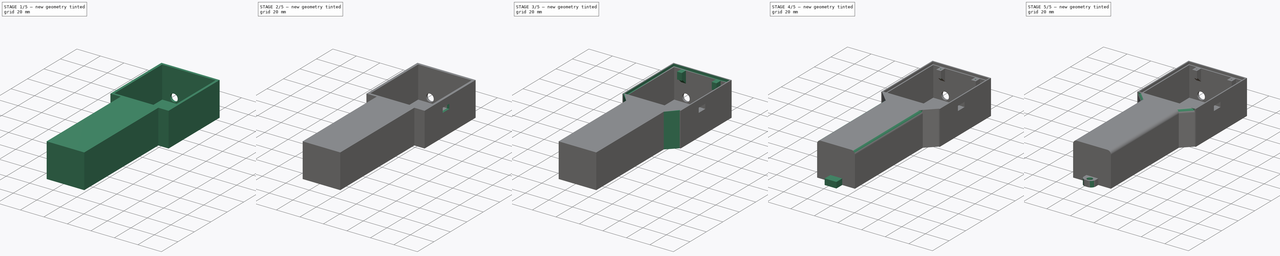
[diagram: build sequence overview — one tinted view per stage of 5, left to right]
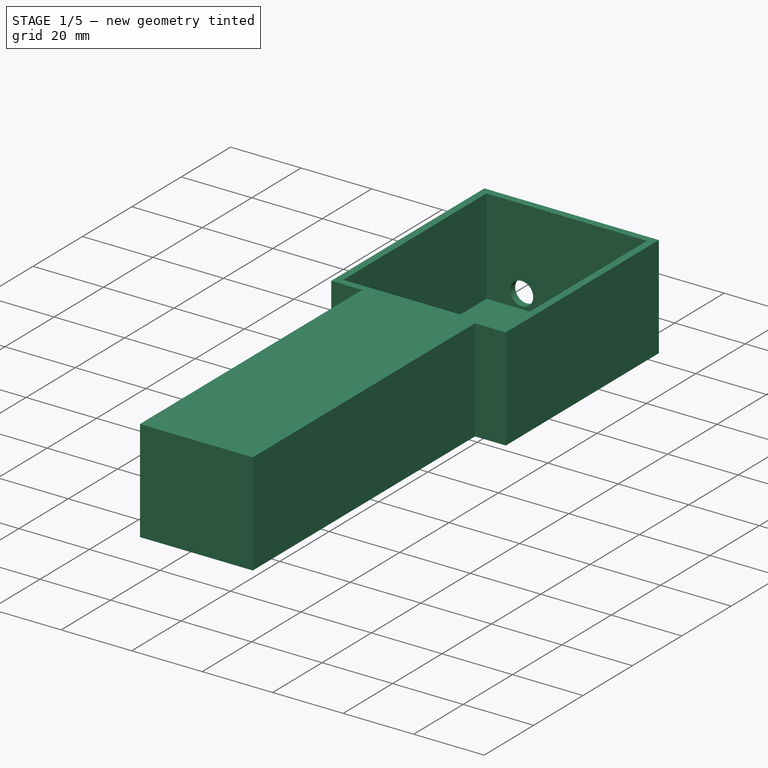
[diagram: stage 1 of 5 — iso view after this stage's code; geometry added in this stage tinted green]
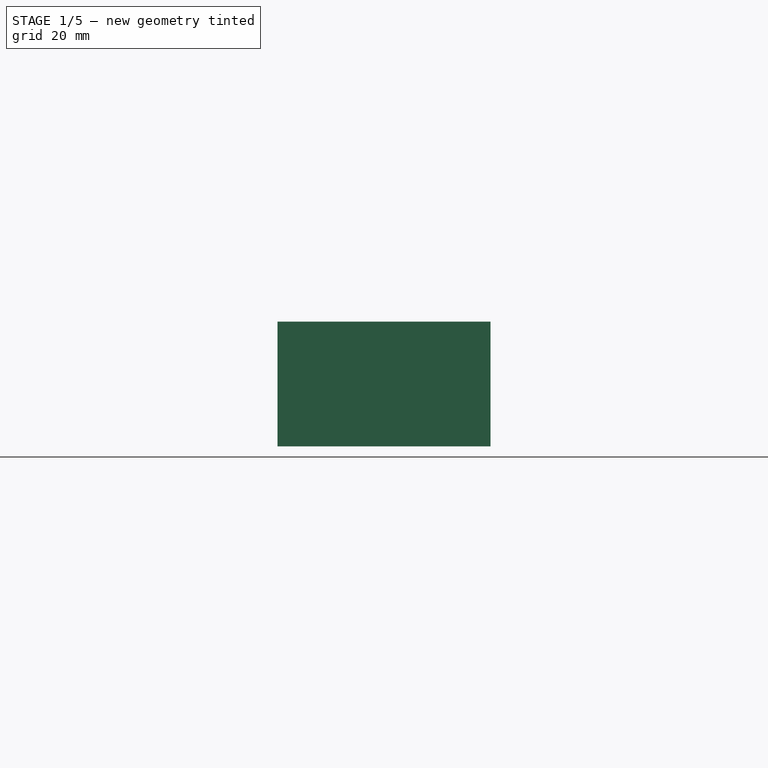
[diagram: stage 1 of 5 — front view after this stage's code; geometry added in this stage tinted green]
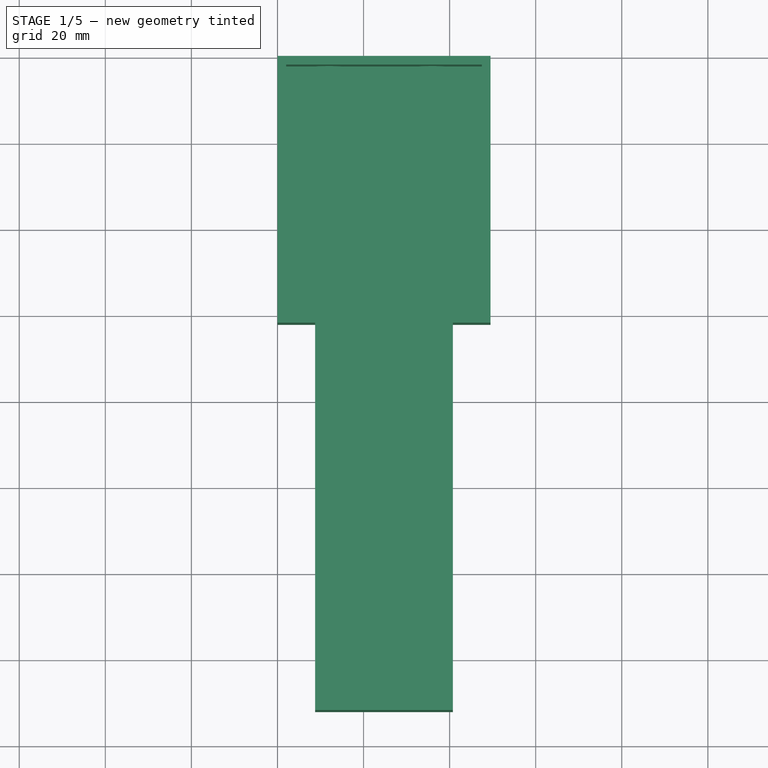
[diagram: stage 1 of 5 — top view after this stage's code; geometry added in this stage tinted green]
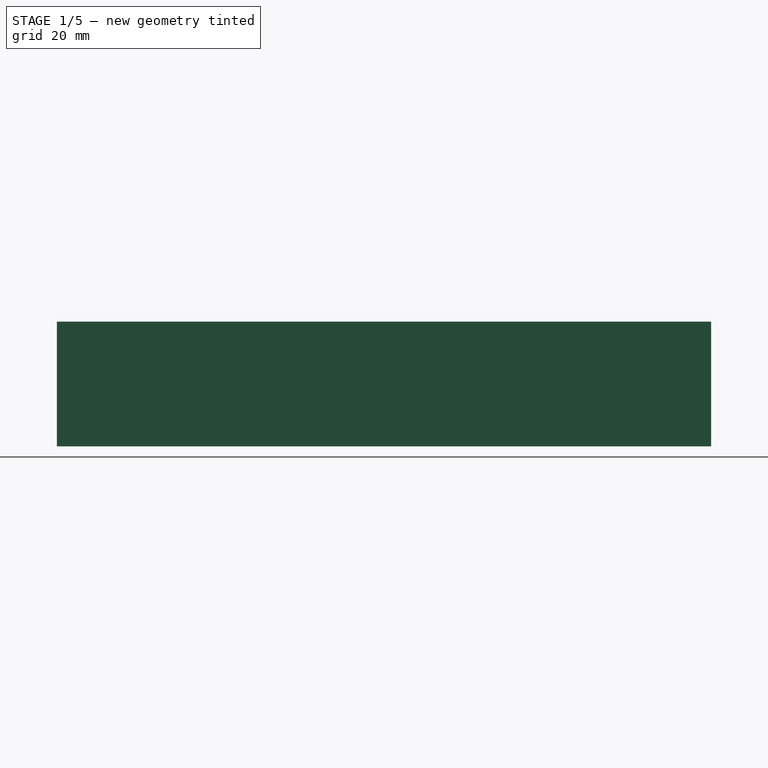
[diagram: stage 1 of 5 — right view after this stage's code; geometry added in this stage tinted green]
FCSTD DOCUMENT  (FreeCAD 0.18R)
Label: power_meter_case
License: All rights reserved
LicenseURL: http://en.wikipedia.org/wiki/All_rights_reserved
objects: Sketcher::SketchObject×18, PartDesign::Pocket×13, PartDesign::Pad×5, PartDesign::Fillet×4, PartDesign::Chamfer×2, PartDesign::Body×1
note: 61 computed .brp shape members not serialized (recipe doc carries the construction recipe); baked Part::Feature solids carry a one-line shape summary decoded from their .brp

FEATURE [Sketcher::SketchObject] Sketch
  MapMode = 5
  Support = -> [XY_Plane]
  sketch-geometry (8):
    g0: LineSegment StartX=0 StartY=0 StartZ=0 EndX=49.5 EndY=0 EndZ=0
    g1: LineSegment StartX=49.5 StartY=0 StartZ=0 EndX=49.5 EndY=-62 EndZ=0
    g2: LineSegment StartX=49.5 StartY=-62 StartZ=0 EndX=40.75 EndY=-62 EndZ=0
    g3: LineSegment StartX=40.75 StartY=-62 StartZ=0 EndX=40.75 EndY=-152 EndZ=0
    g4: LineSegment StartX=40.75 StartY=-152 StartZ=0 EndX=8.75 EndY=-152 EndZ=0
    g5: LineSegment StartX=8.75 StartY=-152 StartZ=0 EndX=8.75 EndY=-62 EndZ=0
    g6: LineSegment StartX=8.75 StartY=-62 StartZ=0 EndX=0 EndY=-62 EndZ=0
    g7: LineSegment StartX=0 StartY=-62 StartZ=0 EndX=0 EndY=0 EndZ=0
  constraints (23):
    c: Coincident(g-1,g0)
    c: PointOnObject(g0,g-1)
    c: Coincident(g0,g1)
    c: Vertical(g1)
    c: Coincident(g1,g2)
    c: Coincident(g2,g3)
    c: Vertical(g3)
    c: Coincident(g3,g4)
    c: Horizontal(g4)
    c: Coincident(g4,g5)
    c: Vertical(g5)
    c: Coincident(g5,g6)
    c: PointOnObject(g6,g-2)
    c: Coincident(g6,g7)
    c: Coincident(g7,g0)
    c: Distance(g0) = 49.5
    c: Equal(g1,g7)
    c: Distance(g1) = 62
    c: Distance(g4) = 32
    c: Equal(g3,g5)
    c: Distance(g5) = 90
    c: Equal(g2,g6)
    c: Parallel(g2,g4)
FEATURE [PartDesign::Pad] Pad
  Length = 29
  Length2 = 100
  Profile = -> Sketch
  Type = 0
FEATURE [Sketcher::SketchObject] Sketch001
  MapMode = 5
  Placement = pos=(0,0,29) rot=(0,0,1;0rad)
  Support = -> [Pad]
  sketch-geometry (6):
    g0: LineSegment StartX=2 StartY=-2 StartZ=0 EndX=47.5 EndY=-2 EndZ=0
    g1: LineSegment StartX=47.5 StartY=-2 StartZ=0 EndX=47.5 EndY=-60 EndZ=0
    g2: LineSegment StartX=47.5 StartY=-60 StartZ=0 EndX=38.75 EndY=-60 EndZ=0
    g3: LineSegment StartX=38.75 StartY=-60 StartZ=0 EndX=10.75 EndY=-60 EndZ=0
    g4: LineSegment StartX=10.75 StartY=-60 StartZ=0 EndX=2 EndY=-60 EndZ=0
    g5: LineSegment StartX=2 StartY=-60 StartZ=0 EndX=2 EndY=-2 EndZ=0
  constraints (18):
    c: Horizontal(g0)
    c: Coincident(g0,g1)
    c: Vertical(g1)
    c: Coincident(g1,g2)
    c: Coincident(g2,g3)
    c: Horizontal(g3)
    c: Coincident(g3,g4)
    c: Coincident(g4,g5)
    c: Coincident(g5,g0)
    c: Vertical(g5)
    c: Distance(g0) = 45.5
    c: Distance(g-1,g5) = 2
    c: DistanceY(g-1,g0) = -2
    c: Distance(g5) = 58
    c: Equal(g5,g1)
    c: Distance(g3) = 28
    c: Equal(g2,g4)
    c: Parallel(g2,g3)
FEATURE [PartDesign::Pocket] Pocket
  BaseFeature = -> Pad
  Length = 27
  Length2 = 100
  Profile = -> Sketch001
  Type = 0
FEATURE [Sketcher::SketchObject] Sketch002
  MapMode = 5
  Placement = pos=(0,0,0) rot=(1,0,0;3.14159rad)
  Support = -> [Pocket]
  sketch-geometry (4):
    g0: LineSegment StartX=10.75 StartY=147 StartZ=0 EndX=38.75 EndY=147 EndZ=0
    g1: LineSegment StartX=38.75 StartY=147 StartZ=0 EndX=38.75 EndY=87 EndZ=0
    g2: LineSegment StartX=38.75 StartY=87 StartZ=0 EndX=10.75 EndY=87 EndZ=0
    g3: LineSegment StartX=10.75 StartY=87 StartZ=0 EndX=10.75 EndY=147 EndZ=0
  constraints (12):
    c: Coincident(g0,g1)
    c: Coincident(g1,g2)
    c: Coincident(g2,g3)
    c: Coincident(g3,g0)
    c: Horizontal(g0)
    c: Horizontal(g2)
    c: Vertical(g1)
    c: Vertical(g3)
    c: Distance(g3) = 60
    c: Distance(g2) = 28
    c: DistanceY(g-1,g1) = 87
    c: DistanceX(g-2,g2) = 10.75
FEATURE [PartDesign::Pocket] Pocket001
  BaseFeature = -> Pocket
  Length = 27
  Length2 = 100
  Profile = -> Sketch002
  Type = 0
FEATURE [Sketcher::SketchObject] Sketch003
  MapMode = 5
  Placement = pos=(0,-60,0) rot=(0,0.707107,0.707107;3.14159rad)
  Support = -> [Pocket001]
  sketch-geometry (4):
    g0: LineSegment StartX=-38.75 StartY=27 StartZ=0 EndX=-10.75 EndY=27 EndZ=0
    g1: LineSegment StartX=-10.75 StartY=27 StartZ=0 EndX=-10.75 EndY=3 EndZ=0
    g2: LineSegment StartX=-10.75 StartY=3 StartZ=0 EndX=-38.75 EndY=3 EndZ=0
    g3: LineSegment StartX=-38.75 StartY=3 StartZ=0 EndX=-38.75 EndY=27 EndZ=0
  constraints (12):
    c: Coincident(g0,g1)
    c: Coincident(g1,g2)
    c: Coincident(g2,g3)
    c: Coincident(g3,g0)
    c: Horizontal(g0)
    c: Horizontal(g2)
    c: Vertical(g1)
    c: Vertical(g3)
    c: Distance(g0) = 28
    c: Distance(g1) = 24
    c: DistanceY(g-1,g2) = 3
    c: DistanceX(g-2,g0) = -10.75
FEATURE [PartDesign::Pocket] Pocket002
  BaseFeature = -> Pocket001
  Length = 27
  Length2 = 100
  Profile = -> Sketch003
  Type = 0
FEATURE [Sketcher::SketchObject] Sketch004
  MapMode = 5
  Placement = pos=(0,0,0) rot=(0,0.707107,0.707107;3.14159rad)
  sketch-geometry (2):
    g0: Circle CenterX=-36 CenterY=6 CenterZ=0 NormalX=0 NormalY=0 NormalZ=1 AngleXU=0 Radius=3.25
    g1: Circle CenterX=-12 CenterY=6 CenterZ=0 NormalX=0 NormalY=0 NormalZ=1 AngleXU=0 Radius=3.25
  constraints (6):
    c: Radius(g1) = 3.25
    c: Radius(g0) = 3.25
    c: DistanceX(g-2,g1) = -12
    c: Distance(g1,g0) = 24
    c: DistanceY(g-1,g1) = 6
    c: DistanceY(g-1,g0) = 6
FEATURE [PartDesign::Pocket] Pocket003
  BaseFeature = -> Pocket002
  Length = 2
  Length2 = 100
  Profile = -> Sketch004
  Type = 0
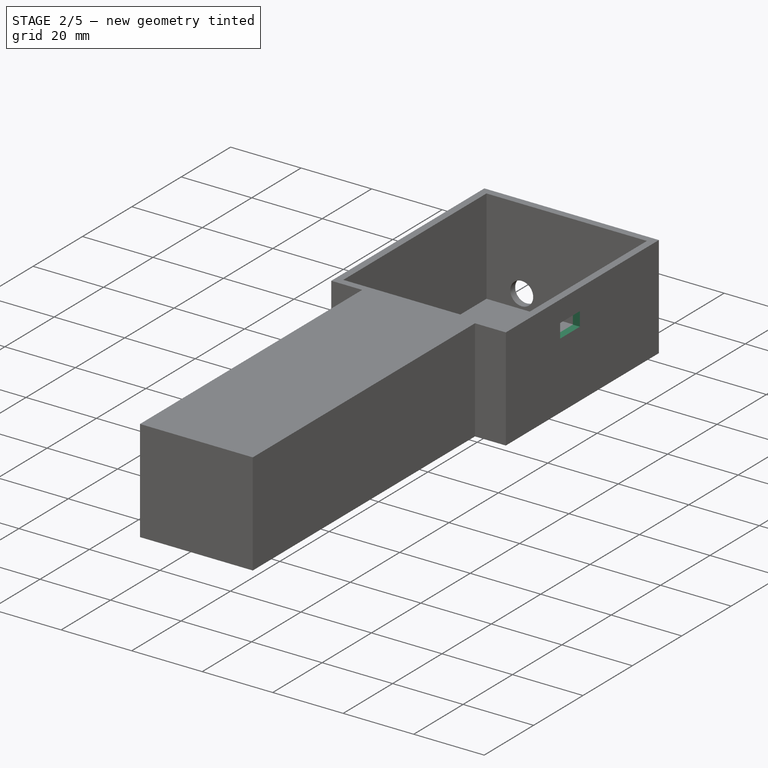
[diagram: stage 2 of 5 — iso view after this stage's code; geometry added in this stage tinted green]
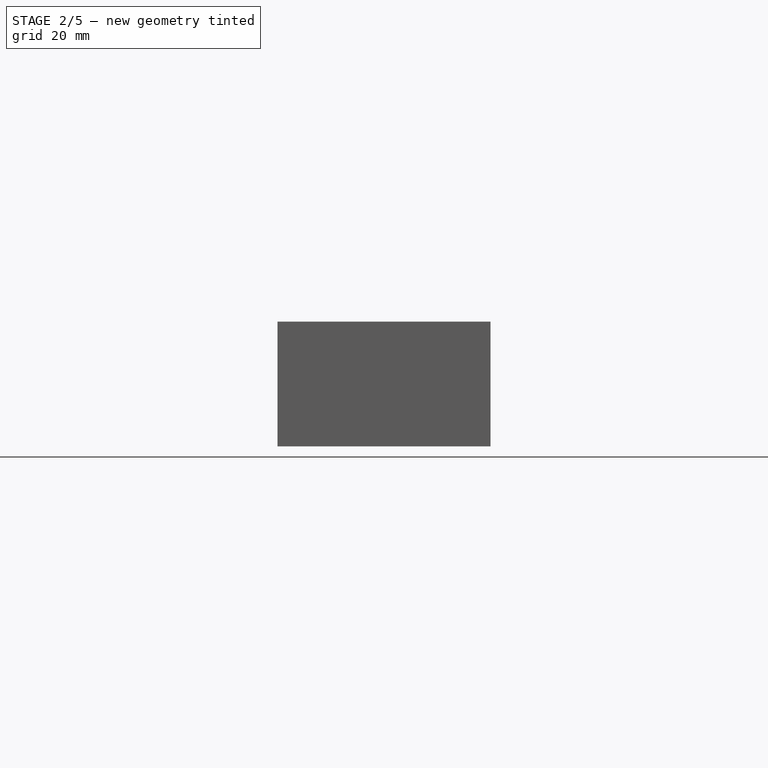
[diagram: stage 2 of 5 — front view after this stage's code; geometry added in this stage tinted green]
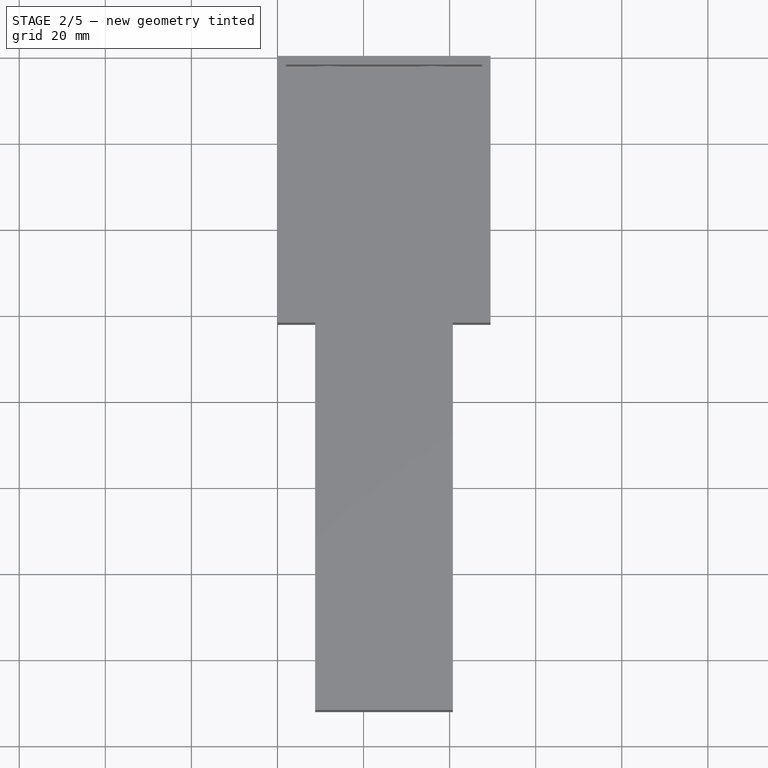
[diagram: stage 2 of 5 — top view after this stage's code; geometry added in this stage tinted green]
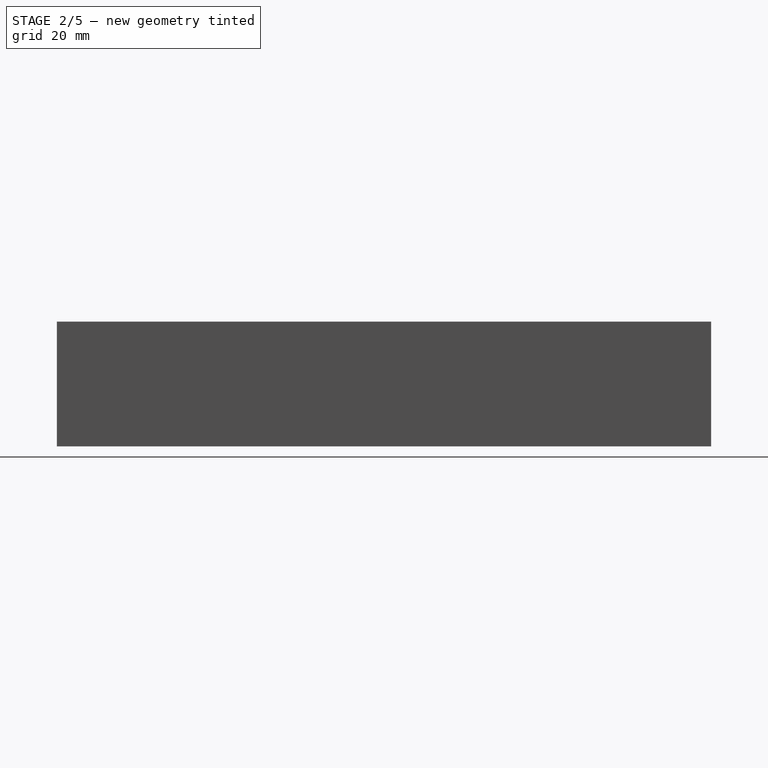
[diagram: stage 2 of 5 — right view after this stage's code; geometry added in this stage tinted green]
FEATURE [Sketcher::SketchObject] Sketch005
  MapMode = 5
  Placement = pos=(0,0,0) rot=(1,0,0;3.14159rad)
  Support = -> [Pocket002]
  sketch-geometry (4):
    g0: LineSegment StartX=10 StartY=148 StartZ=0 EndX=39.64 EndY=148 EndZ=0
    g1: LineSegment StartX=39.64 StartY=148 StartZ=0 EndX=39.64 EndY=87 EndZ=0
    g2: LineSegment StartX=39.64 StartY=87 StartZ=0 EndX=10 EndY=87 EndZ=0
    g3: LineSegment StartX=10 StartY=87 StartZ=0 EndX=10 EndY=148 EndZ=0
  constraints (12):
    c: Coincident(g0,g1)
    c: Coincident(g1,g2)
    c: Coincident(g2,g3)
    c: Coincident(g3,g0)
    c: Horizontal(g0)
    c: Horizontal(g2)
    c: Vertical(g1)
    c: Vertical(g3)
    c: Distance(g1) = 61
    c: DistanceY(g-1,g1) = 87
    c: DistanceX(g-2,g2) = 10
    c: Distance(g0) = 29.64
FEATURE [PartDesign::Pocket] Pocket004
  BaseFeature = -> Pocket003
  Length = 2
  Length2 = 100
  Profile = -> Sketch005
  Type = 0
FEATURE [Sketcher::SketchObject] Sketch006
  MapMode = 5
  Placement = pos=(0,-87,0) rot=(1,0,0;1.5708rad)
  Support = -> [Pocket004]
  sketch-geometry (4):
    g0: LineSegment StartX=38.75 StartY=2 StartZ=0 EndX=10.75 EndY=2 EndZ=0
    g1: LineSegment StartX=10.75 StartY=2 StartZ=0 EndX=10.75 EndY=3 EndZ=0
    g2: LineSegment StartX=10.75 StartY=3 StartZ=0 EndX=38.75 EndY=3 EndZ=0
    g3: LineSegment StartX=38.75 StartY=3 StartZ=0 EndX=38.75 EndY=2 EndZ=0
  constraints (12):
    c: Coincident(g0,g1)
    c: Coincident(g1,g2)
    c: Coincident(g2,g3)
    c: Coincident(g3,g0)
    c: Horizontal(g0)
    c: Horizontal(g2)
    c: Vertical(g1)
    c: Vertical(g3)
    c: Distance(g3) = 1
    c: Distance(g0) = 28
    c: DistanceX(g-2,g0) = 10.75
    c: DistanceY(g-1,g0) = 2
FEATURE [PartDesign::Pocket] Pocket005
  BaseFeature = -> Pocket004
  Length = 3
  Length2 = 100
  Profile = -> Sketch006
  Type = 0
FEATURE [Sketcher::SketchObject] Sketch008
  MapMode = 5
  Placement = pos=(0,0,0) rot=(1,0,0;3.14159rad)
  Support = -> [Pocket005]
  sketch-geometry (1):
    g0: Circle CenterX=24.75 CenterY=148 CenterZ=0 NormalX=0 NormalY=0 NormalZ=1 AngleXU=0 Radius=3
  constraints (3):
    c: DistanceX(g-2,g0) = 24.75
    c: DistanceY(g-1,g0) = 148
    c: Radius(g0) = 3
FEATURE [PartDesign::Pocket] Pocket006
  BaseFeature = -> Pocket005
  Length = 2
  Length2 = 100
  Profile = -> Sketch008
  Type = 0
FEATURE [Sketcher::SketchObject] Sketch009
  MapMode = 5
  Placement = pos=(0,0,2) rot=(1,0,0;3.14159rad)
  Support = -> [Pocket006]
  sketch-geometry (1):
    g0: Circle CenterX=24.75 CenterY=148 CenterZ=0 NormalX=0 NormalY=0 NormalZ=1 AngleXU=0 Radius=0.5
  constraints (3):
    c: DistanceX(g-2,g0) = 24.75
    c: DistanceY(g-1,g0) = 148
    c: Radius(g0) = 0.5
FEATURE [PartDesign::Pocket] Pocket007
  BaseFeature = -> Pocket006
  Length = 10
  Length2 = 100
  Profile = -> Sketch009
  Type = 0
FEATURE [Sketcher::SketchObject] Sketch010
  MapMode = 5
  Placement = pos=(49.5,0,0) rot=(0.57735,0.57735,0.57735;2.0944rad)
  Support = -> [Pocket007]
  sketch-geometry (4):
    g0: LineSegment StartX=-40 StartY=23 StartZ=0 EndX=-32 EndY=23 EndZ=0
    g1: LineSegment StartX=-32 StartY=23 StartZ=0 EndX=-32 EndY=19 EndZ=0
    g2: LineSegment StartX=-32 StartY=19 StartZ=0 EndX=-40 EndY=19 EndZ=0
    g3: LineSegment StartX=-40 StartY=19 StartZ=0 EndX=-40 EndY=23 EndZ=0
  constraints (12):
    c: Coincident(g0,g1)
    c: Coincident(g1,g2)
    c: Coincident(g2,g3)
    c: Coincident(g3,g0)
    c: Horizontal(g0)
    c: Horizontal(g2)
    c: Vertical(g1)
    c: Vertical(g3)
    c: DistanceX(g-2,g0) = -32
    c: Distance(g0) = 8
    c: Distance(g3) = 4
    c: DistanceY(g-1,g1) = 19
FEATURE [PartDesign::Pocket] Pocket008
  BaseFeature = -> Pocket007
  Length = 2
  Length2 = 100
  Profile = -> Sketch010
  Type = 0
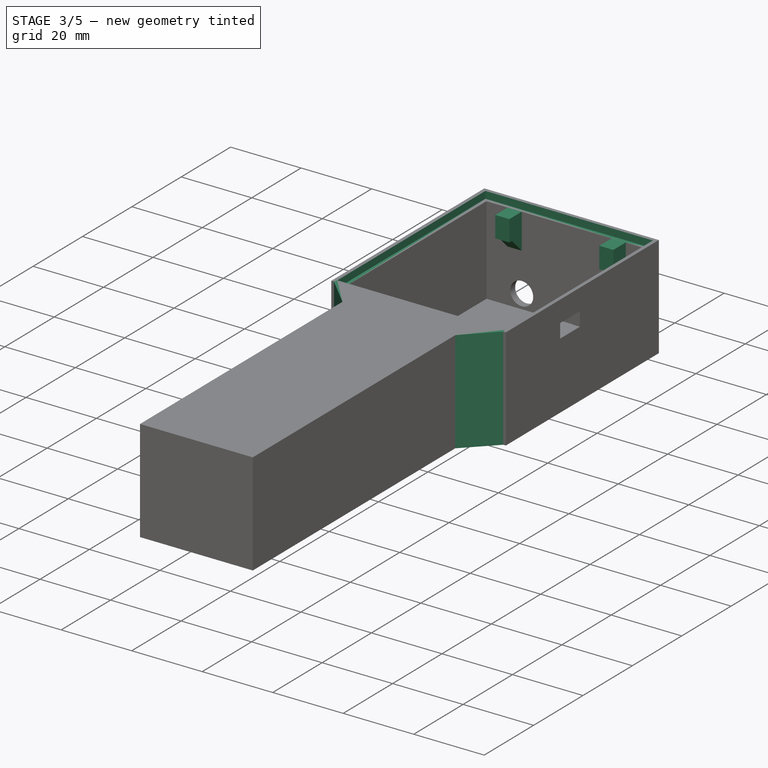
[diagram: stage 3 of 5 — iso view after this stage's code; geometry added in this stage tinted green]
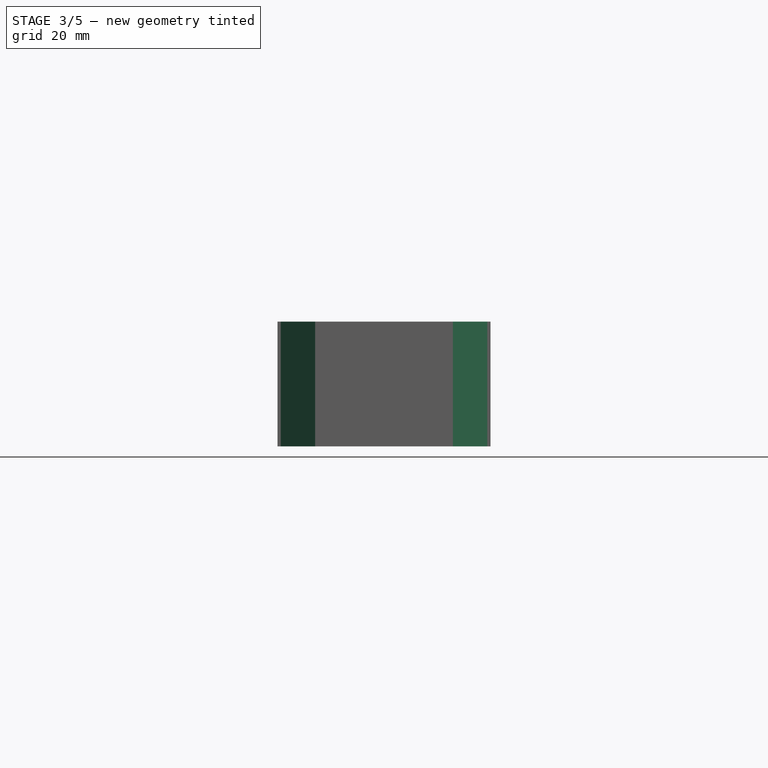
[diagram: stage 3 of 5 — front view after this stage's code; geometry added in this stage tinted green]
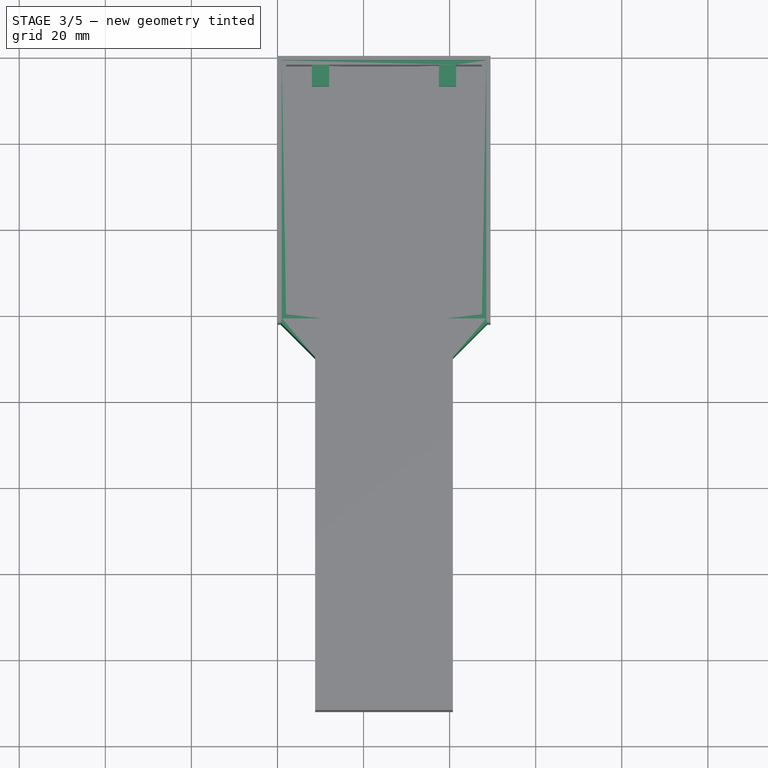
[diagram: stage 3 of 5 — top view after this stage's code; geometry added in this stage tinted green]
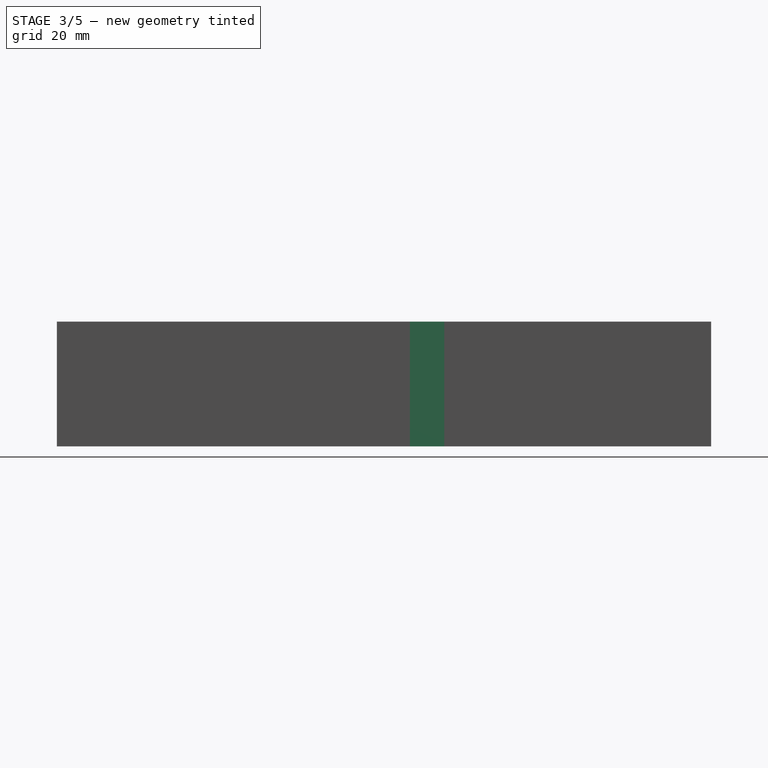
[diagram: stage 3 of 5 — right view after this stage's code; geometry added in this stage tinted green]
FEATURE [Sketcher::SketchObject] Sketch011
  MapMode = 5
  Placement = pos=(0,0,29) rot=(0,0,1;0rad)
  Support = -> [Pocket008]
  sketch-geometry (4):
    g0: LineSegment StartX=1 StartY=-1 StartZ=0 EndX=48.5 EndY=-1 EndZ=0
    g1: LineSegment StartX=48.5 StartY=-1 StartZ=0 EndX=48.5 EndY=-61 EndZ=0
    g2: LineSegment StartX=48.5 StartY=-61 StartZ=0 EndX=1 EndY=-61 EndZ=0
    g3: LineSegment StartX=1 StartY=-61 StartZ=0 EndX=1 EndY=-1 EndZ=0
  constraints (12):
    c: Coincident(g0,g1)
    c: Coincident(g1,g2)
    c: Coincident(g2,g3)
    c: Coincident(g3,g0)
    c: Horizontal(g0)
    c: Horizontal(g2)
    c: Vertical(g1)
    c: Vertical(g3)
    c: DistanceY(g-1,g0) = -1
    c: DistanceX(g-2,g0) = 1
    c: Distance(g0) = 47.5
    c: Distance(g1) = 60
FEATURE [PartDesign::Pocket] Pocket009
  BaseFeature = -> Pocket008
  Length = 2
  Length2 = 100
  Profile = -> Sketch011
  Type = 0
FEATURE [PartDesign::Chamfer] Chamfer
  Base = -> Pocket009 [Edge44,Edge43]
  BaseFeature = -> Pocket009
  Size = 8
FEATURE [Sketcher::SketchObject] Sketch012
  MapMode = 5
  Placement = pos=(0,-2,0) rot=(1,0,0;1.5708rad)
  Support = -> [Chamfer]
  sketch-geometry (8):
    g0: LineSegment StartX=8 StartY=27 StartZ=0 EndX=12 EndY=27 EndZ=0
    g1: LineSegment StartX=12 StartY=27 StartZ=0 EndX=12 EndY=21 EndZ=0
    g2: LineSegment StartX=12 StartY=21 StartZ=0 EndX=8 EndY=21 EndZ=0
    g3: LineSegment StartX=8 StartY=21 StartZ=0 EndX=8 EndY=27 EndZ=0
    g4: LineSegment StartX=37.5 StartY=27 StartZ=0 EndX=41.5 EndY=27 EndZ=0
    g5: LineSegment StartX=41.5 StartY=27 StartZ=0 EndX=41.5 EndY=21 EndZ=0
    g6: LineSegment StartX=41.5 StartY=21 StartZ=0 EndX=37.5 EndY=21 EndZ=0
    g7: LineSegment StartX=37.5 StartY=21 StartZ=0 EndX=37.5 EndY=27 EndZ=0
  constraints (24):
    c: Coincident(g0,g1)
    c: Coincident(g1,g2)
    c: Coincident(g2,g3)
    c: Coincident(g3,g0)
    c: Horizontal(g0)
    c: Horizontal(g2)
    c: Vertical(g1)
    c: Vertical(g3)
    c: Coincident(g4,g5)
    c: Coincident(g5,g6)
    c: Coincident(g6,g7)
    c: Coincident(g7,g4)
    c: Horizontal(g4)
    c: Horizontal(g6)
    c: Vertical(g5)
    c: Vertical(g7)
    c: Distance(g0) = 4
    c: Distance(g4) = 4
    c: Distance(g1) = 6
    c: Distance(g7) = 6
    c: DistanceX(g-2,g0) = 8
    c: DistanceY(g-1,g0) = 27
    c: DistanceY(g-1,g4) = 27
    c: DistanceX(g-2,g4) = 37.5
FEATURE [PartDesign::Pad] Pad001
  BaseFeature = -> Chamfer
  Length = 5
  Length2 = 100
  Profile = -> Sketch012
  Type = 0
FEATURE [PartDesign::Chamfer] Chamfer001
  Base = -> Pad001 [Edge101,Edge105]
  BaseFeature = -> Pad001
  Size = 4
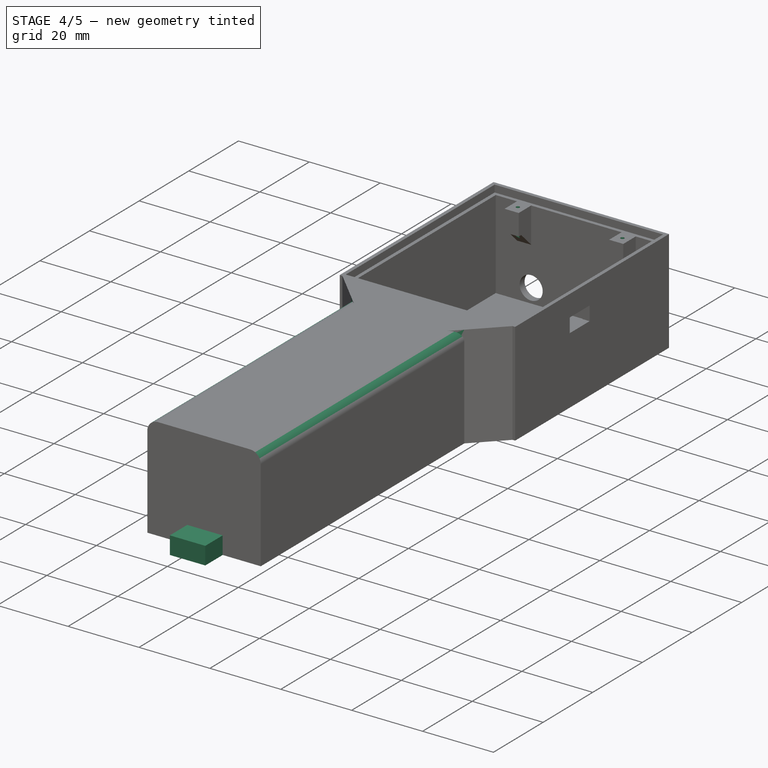
[diagram: stage 4 of 5 — iso view after this stage's code; geometry added in this stage tinted green]
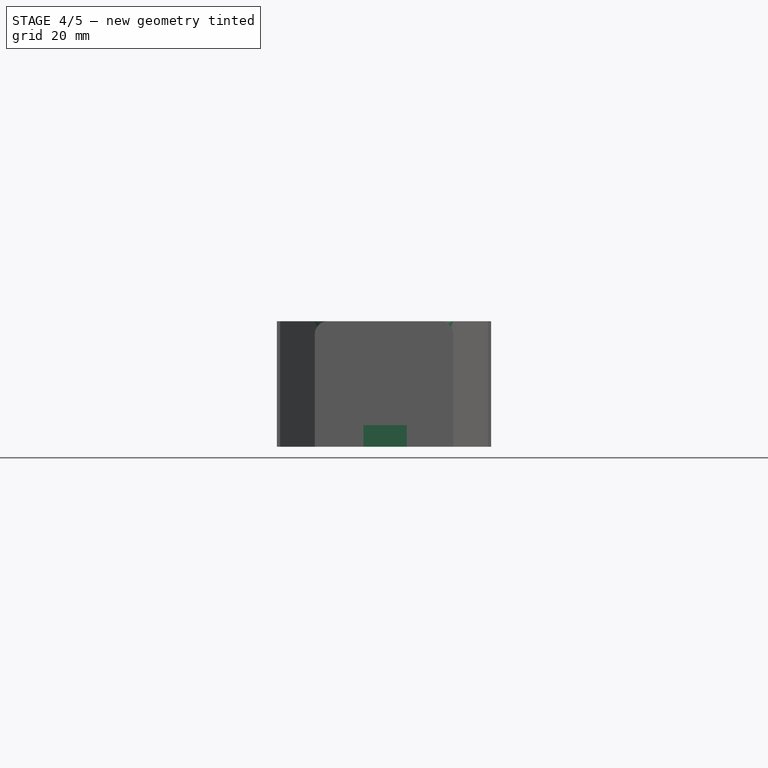
[diagram: stage 4 of 5 — front view after this stage's code; geometry added in this stage tinted green]
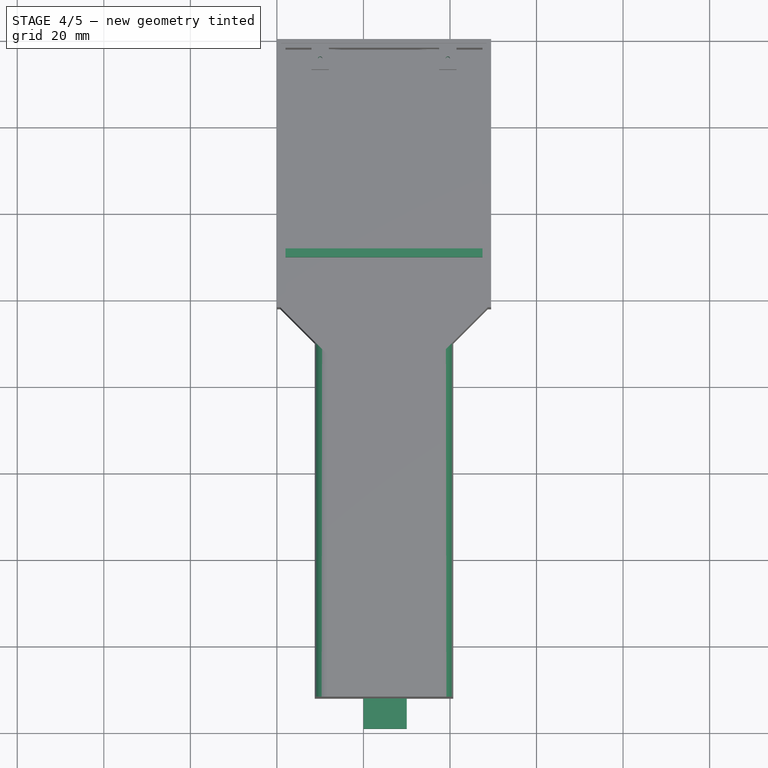
[diagram: stage 4 of 5 — top view after this stage's code; geometry added in this stage tinted green]
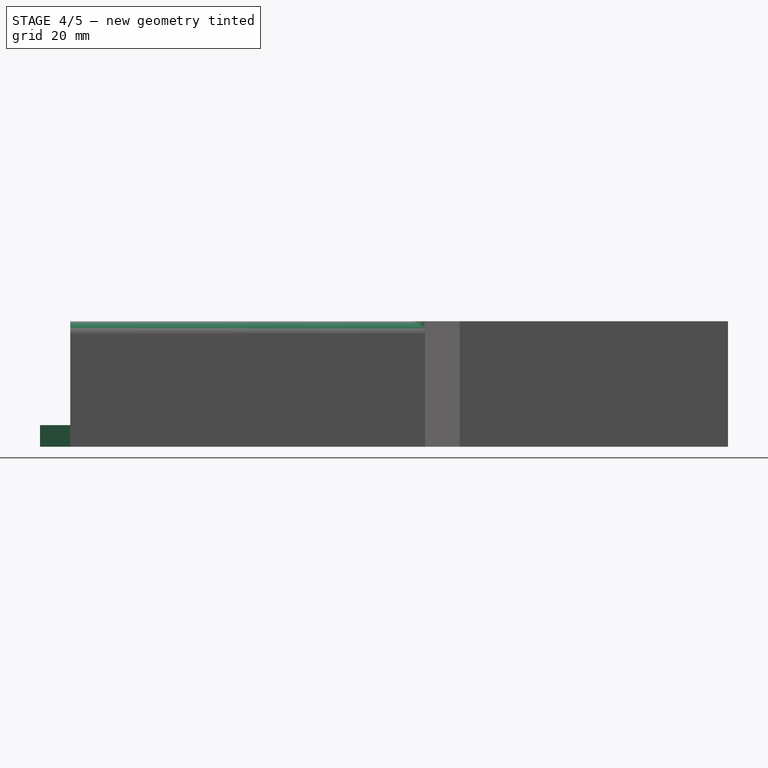
[diagram: stage 4 of 5 — right view after this stage's code; geometry added in this stage tinted green]
FEATURE [Sketcher::SketchObject] Sketch013
  MapMode = 5
  Placement = pos=(0,6e-15,27) rot=(0,0,1;0rad)
  Support = -> [Chamfer001]
  sketch-geometry (2):
    g0: Circle CenterX=10 CenterY=-4.5 CenterZ=0 NormalX=0 NormalY=0 NormalZ=1 AngleXU=0 Radius=0.5
    g1: Circle CenterX=39.5 CenterY=-4.5 CenterZ=0 NormalX=0 NormalY=0 NormalZ=1 AngleXU=0 Radius=0.5
  constraints (6):
    c: Radius(g0) = 0.5
    c: DistanceX(g-2,g0) = 10
    c: DistanceY(g-1,g0) = -4.5
    c: Radius(g1) = 0.5
    c: DistanceY(g-1,g1) = -4.5
    c: DistanceX(g-2,g1) = 39.5
FEATURE [PartDesign::Pocket] Pocket010
  BaseFeature = -> Chamfer001
  Length = 10
  Length2 = 100
  Profile = -> Sketch013
  Type = 0
FEATURE [Sketcher::SketchObject] Sketch014
  MapMode = 5
  Placement = pos=(0,0,2) rot=(0,0,1;0rad)
  Support = -> [Pocket010]
  expr: Constraints[11] = -48mm
  sketch-geometry (4):
    g0: LineSegment StartX=2 StartY=-48 StartZ=0 EndX=47.5 EndY=-48 EndZ=0
    g1: LineSegment StartX=47.5 StartY=-48 StartZ=0 EndX=47.5 EndY=-50 EndZ=0
    g2: LineSegment StartX=47.5 StartY=-50 StartZ=0 EndX=2 EndY=-50 EndZ=0
    g3: LineSegment StartX=2 StartY=-50 StartZ=0 EndX=2 EndY=-48 EndZ=0
  constraints (12):
    c: Coincident(g0,g1)
    c: Coincident(g1,g2)
    c: Coincident(g2,g3)
    c: Coincident(g3,g0)
    c: Horizontal(g0)
    c: Horizontal(g2)
    c: Vertical(g1)
    c: Vertical(g3)
    c: Distance(g3) = 2
    c: Distance(g0) = 45.5
    c: DistanceX(g-2,g0) = 2
    c: DistanceY(g-1,g0) = -48
FEATURE [PartDesign::Pad] Pad002
  BaseFeature = -> Pocket010
  Length = 4
  Length2 = 100
  Profile = -> Sketch014
  Type = 0
FEATURE [Sketcher::SketchObject] Sketch015
  MapMode = 5
  Placement = pos=(8.75,0,0) rot=(0.57735,-0.57735,-0.57735;2.0944rad)
  Support = -> [Pad002]
  sketch-geometry (4):
    g0: LineSegment StartX=72 StartY=18.8 StartZ=0 EndX=85 EndY=18.8 EndZ=0
    g1: LineSegment StartX=85 StartY=18.8 StartZ=0 EndX=85 EndY=10 EndZ=0
    g2: LineSegment StartX=85 StartY=10 StartZ=0 EndX=72 EndY=10 EndZ=0
    g3: LineSegment StartX=72 StartY=10 StartZ=0 EndX=72 EndY=18.8 EndZ=0
  constraints (12):
    c: Coincident(g0,g1)
    c: Coincident(g1,g2)
    c: Coincident(g2,g3)
    c: Coincident(g3,g0)
    c: Horizontal(g0)
    c: Horizontal(g2)
    c: Vertical(g1)
    c: Vertical(g3)
    c: Distance(g2) = 13
    c: Distance(g1) = 8.8
    c: DistanceY(g-1,g1) = 10
    c: DistanceX(g-2,g2) = 72
FEATURE [PartDesign::Pocket] Pocket011
  BaseFeature = -> Pad002
  Length = 3
  Length2 = 100
  Profile = -> Sketch015
  Type = 0
FEATURE [PartDesign::Fillet] Fillet
  Base = -> Pocket011 [Edge127,Edge130]
  BaseFeature = -> Pocket011
  Radius = 3
FEATURE [Sketcher::SketchObject] Sketch016
  MapMode = 5
  Placement = pos=(0,-152,0) rot=(1,0,0;1.5708rad)
  Support = -> [Fillet]
  sketch-geometry (4):
    g0: LineSegment StartX=20 StartY=0 StartZ=0 EndX=30 EndY=0 EndZ=0
    g1: LineSegment StartX=30 StartY=0 StartZ=0 EndX=30 EndY=5 EndZ=0
    g2: LineSegment StartX=30 StartY=5 StartZ=0 EndX=20 EndY=5 EndZ=0
    g3: LineSegment StartX=20 StartY=5 StartZ=0 EndX=20 EndY=0 EndZ=0
  constraints (12):
    c: Coincident(g0,g1)
    c: Coincident(g1,g2)
    c: Coincident(g2,g3)
    c: Coincident(g3,g0)
    c: Horizontal(g0)
    c: Horizontal(g2)
    c: Vertical(g1)
    c: Vertical(g3)
    c: PointOnObject(g0,g-1)
    c: Distance(g3) = 5
    c: Distance(g2) = 10
    c: DistanceX(g-2,g0) = 20
FEATURE [PartDesign::Pad] Pad003
  BaseFeature = -> Fillet
  Length = 7
  Length2 = 100
  Profile = -> Sketch016
  Type = 0
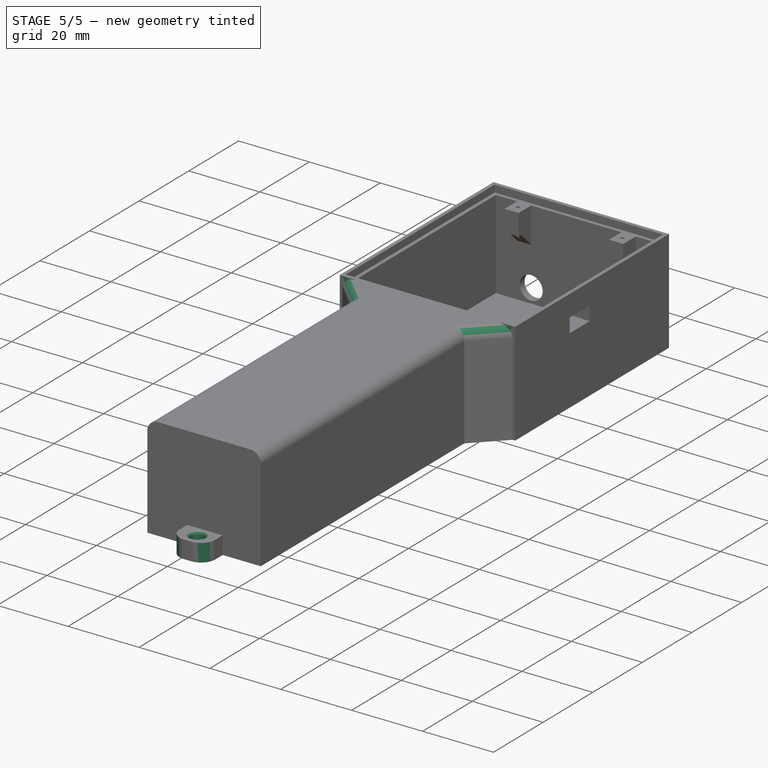
[diagram: stage 5 of 5 — iso view after this stage's code; geometry added in this stage tinted green]
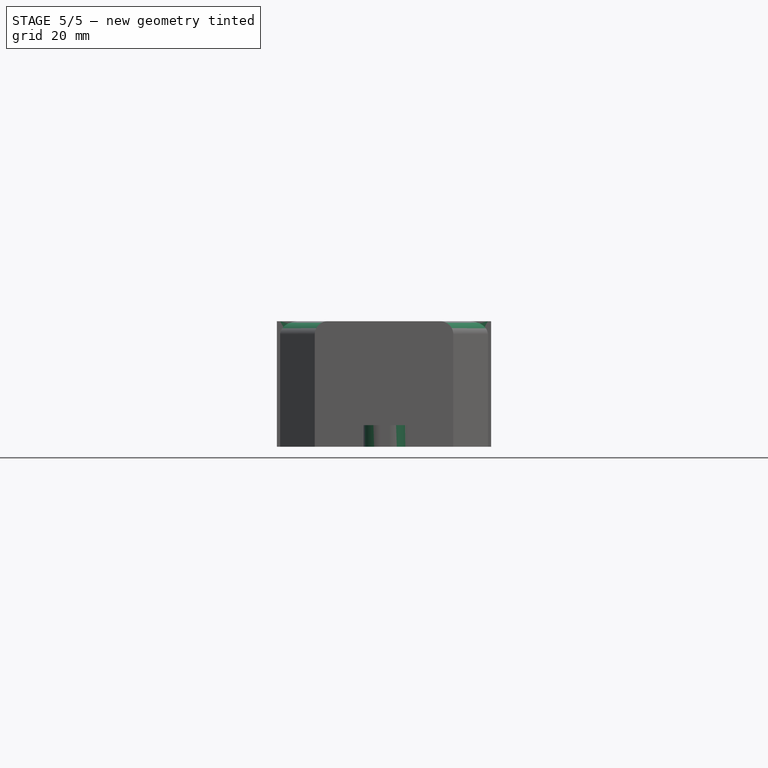
[diagram: stage 5 of 5 — front view after this stage's code; geometry added in this stage tinted green]
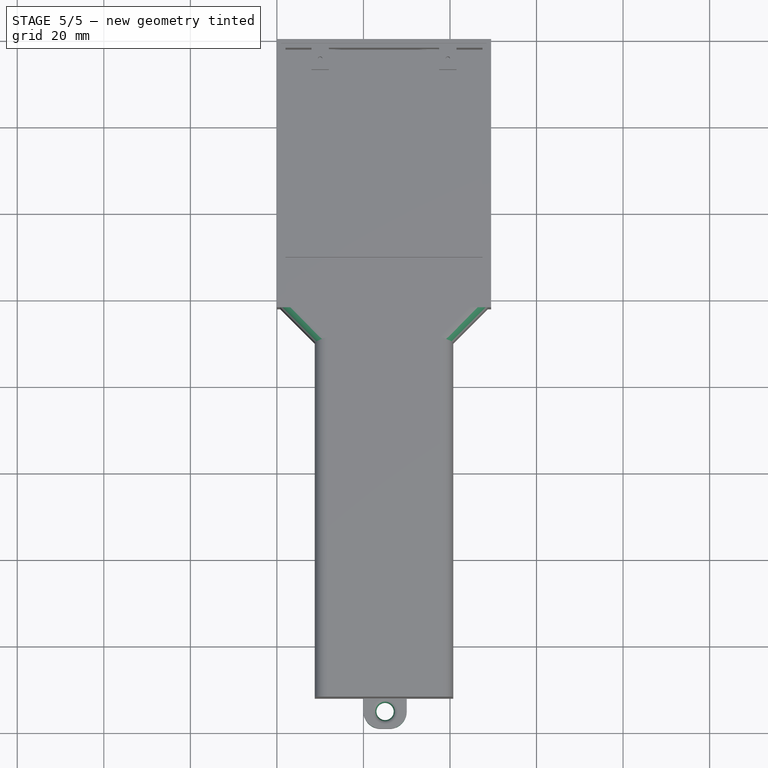
[diagram: stage 5 of 5 — top view after this stage's code; geometry added in this stage tinted green]
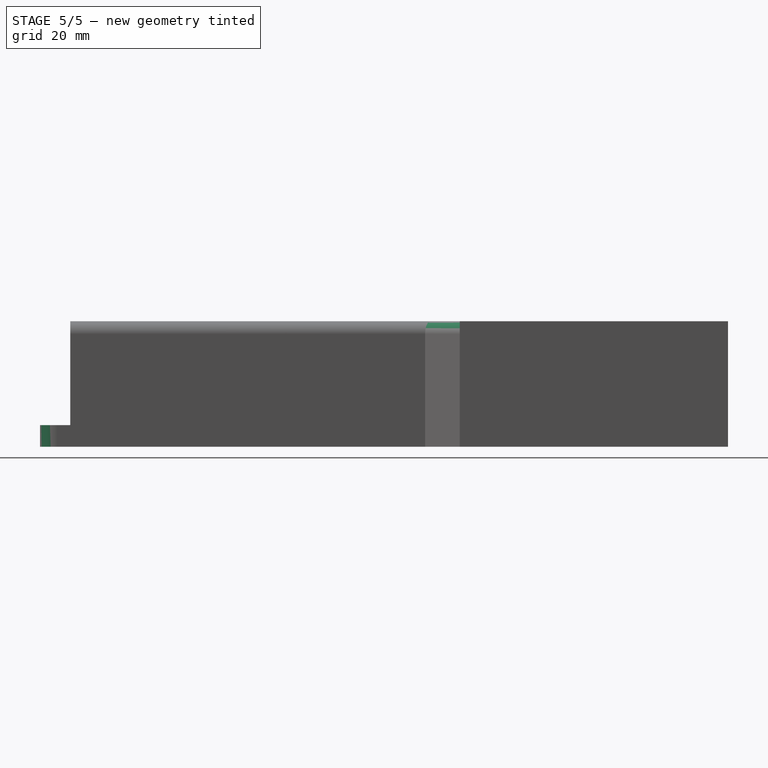
[diagram: stage 5 of 5 — right view after this stage's code; geometry added in this stage tinted green]
FEATURE [PartDesign::Fillet] Fillet001
  Base = -> Pad003 [Edge74,Edge78]
  BaseFeature = -> Pad003
  Radius = 4
FEATURE [Sketcher::SketchObject] Sketch017
  MapMode = 5
  Placement = pos=(0,1.1e-15,5) rot=(0,0,1;0rad)
  Support = -> [Fillet001]
  sketch-geometry (1):
    g0: Circle CenterX=25 CenterY=-155 CenterZ=0 NormalX=0 NormalY=0 NormalZ=1 AngleXU=0 Radius=2
  constraints (3):
    c: Radius(g0) = 2
    c: DistanceX(g-2,g0) = 25
    c: DistanceY(g-1,g0) = -155
FEATURE [PartDesign::Pocket] Pocket012
  BaseFeature = -> Fillet001
  Length = 5
  Length2 = 100
  Profile = -> Sketch017
  Type = 0
FEATURE [PartDesign::Fillet] Fillet002
  Base = -> Pocket012 [Edge25,Edge10]
  BaseFeature = -> Pocket012
  Radius = 1
FEATURE [Sketcher::SketchObject] Sketch018
  MapMode = 5
  Placement = pos=(0,0,27) rot=(1,0,0;3.14159rad)
  Support = -> [Fillet002]
  sketch-geometry (4):
    g0: LineSegment StartX=20 StartY=102 StartZ=0 EndX=30 EndY=102 EndZ=0
    g1: LineSegment StartX=30 StartY=102 StartZ=0 EndX=30 EndY=98 EndZ=0
    g2: LineSegment StartX=30 StartY=98 StartZ=0 EndX=20 EndY=98 EndZ=0
    g3: LineSegment StartX=20 StartY=98 StartZ=0 EndX=20 EndY=102 EndZ=0
  constraints (12):
    c: Coincident(g0,g1)
    c: Coincident(g1,g2)
    c: Coincident(g2,g3)
    c: Coincident(g3,g0)
    c: Horizontal(g0)
    c: Horizontal(g2)
    c: Vertical(g1)
    c: Vertical(g3)
    c: Distance(g1) = 4
    c: Distance(g0) = 10
    c: DistanceY(g-1,g0) = 102
    c: DistanceX(g-2,g0) = 20
FEATURE [PartDesign::Pad] Pad004
  BaseFeature = -> Fillet002
  Length = 2
  Length2 = 100
  Profile = -> Sketch018
  Type = 0
FEATURE [PartDesign::Fillet] Fillet003
  Base = -> Pad004 [Edge71,Edge72,Edge81,Edge82]
  BaseFeature = -> Pad004
  Radius = 3
FEATURE [PartDesign::Body] Body
  Group = -> [Sketch,Pad,Sketch001,Pocket,Sketch002,Pocket001,Sketch003,Pocket002,Sketch004,Pocket003,Sketch005,Pocket004,Sketch006,Pocket005,Sketch008,Pocket006,Sketch009,Pocket007,Sketch010,Pocket008,Sketch011,Pocket009,Chamfer,Sketch012,Pad001,Chamfer001,Sketch013,Pocket010,Sketch014,Pad002,Sketch015,Pocket011,Fillet,Sketch016,Pad003,Fillet001,Sketch017,Pocket012,Fillet002,Sketch018,Pad004,Fillet003]
  Origin = -> Origin
  Tip = -> Fillet003
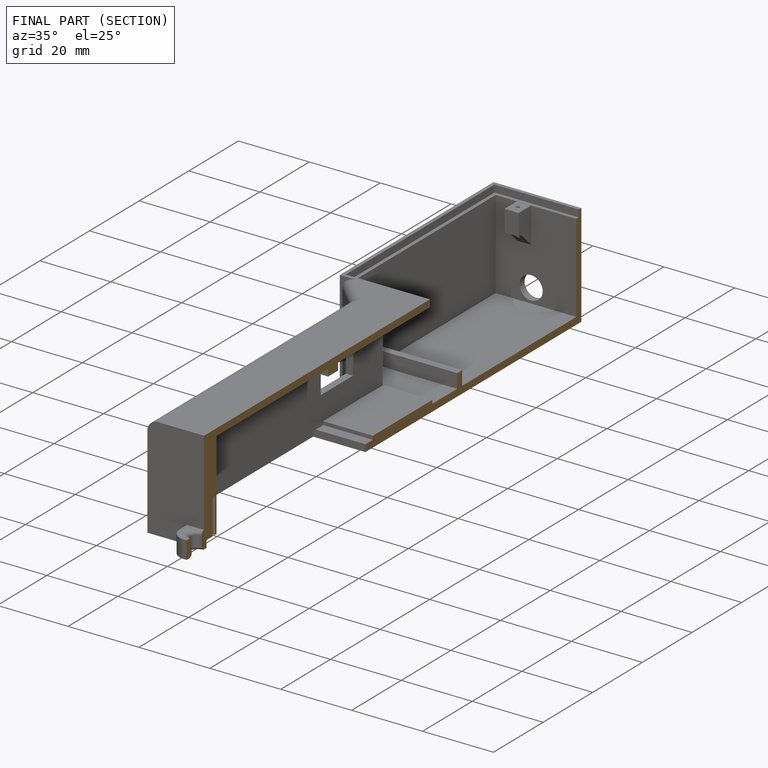
[diagram: finished part — half-section view (interior)]
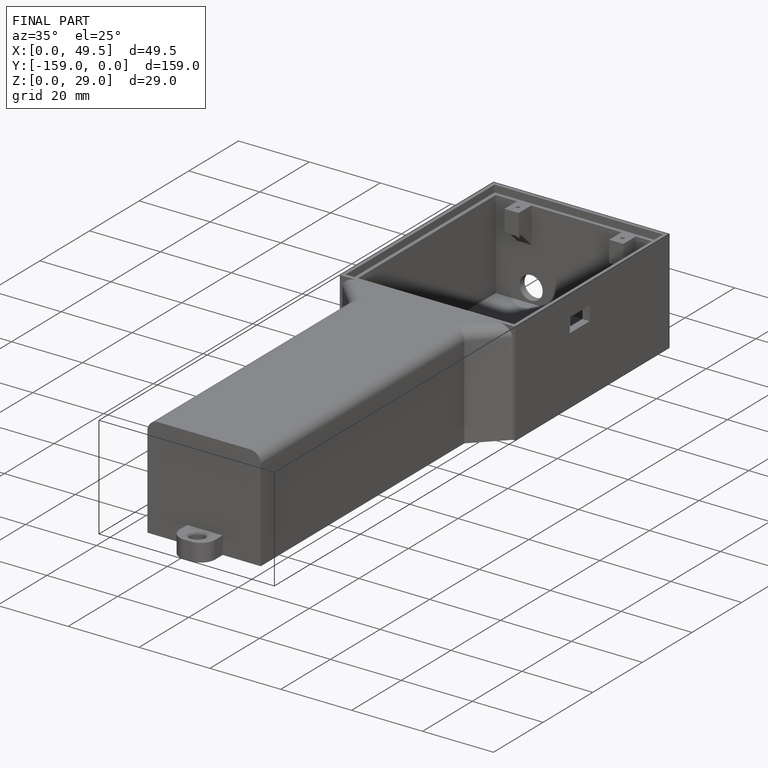
[diagram: finished part — iso view with bounding-box wireframe]
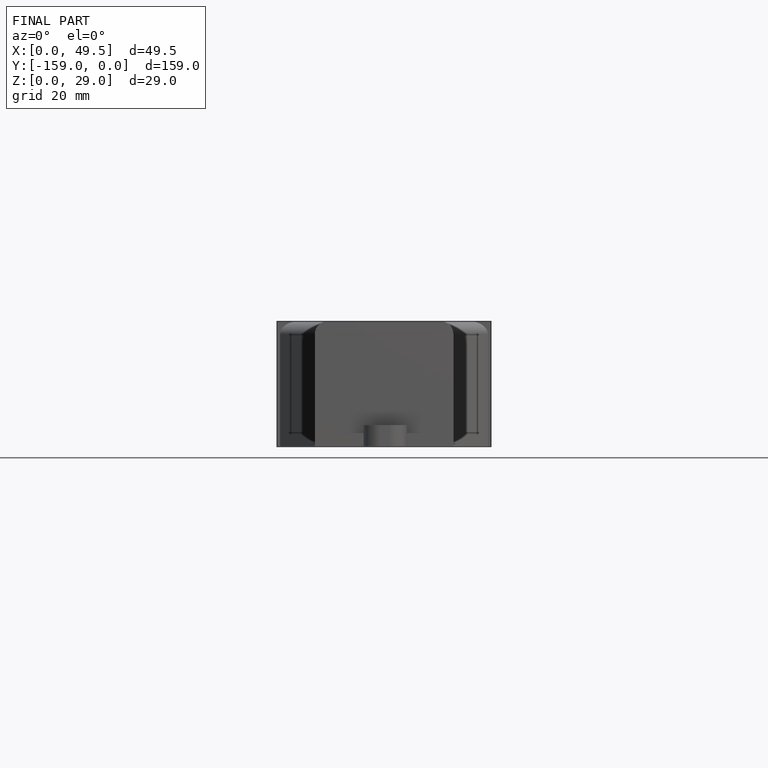
[diagram: finished part — front view with bounding-box wireframe]
